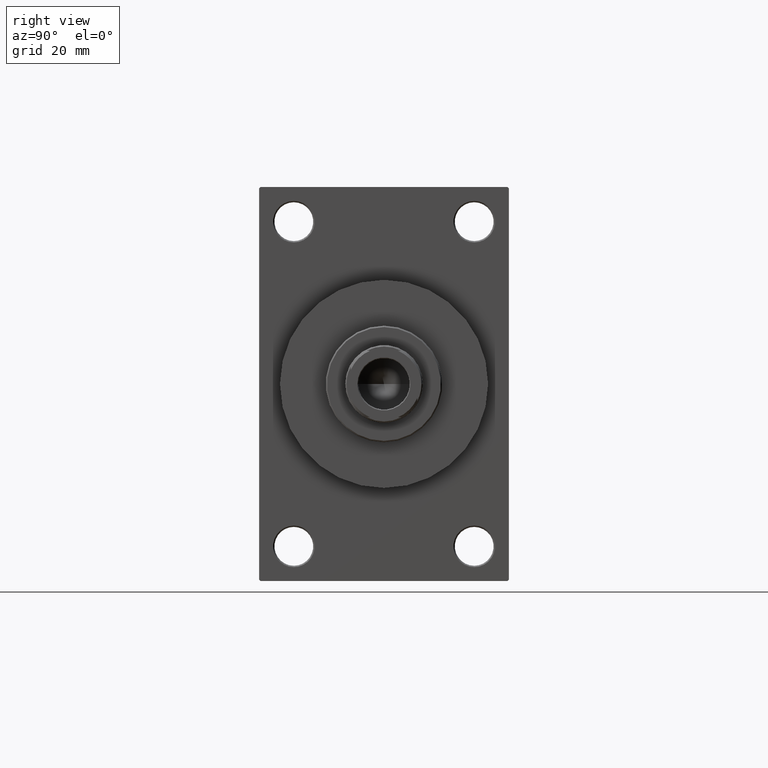
[diagram: clean part render]
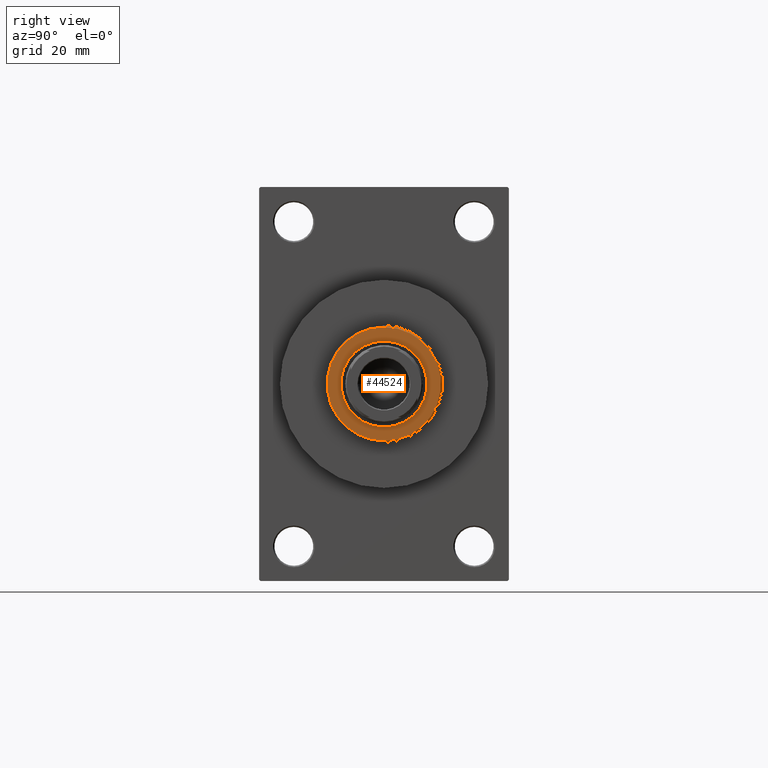
[diagram: same view with one face highlighted and labeled with its STEP entity id]
A machine part, right view. The second image highlights one B-rep face of the part: STEP entity #44524.
In plain terms, the highlighted planar face has unit normal (1, -0, -0).
Its self-contained STEP definition (entity closure, byte-faithful):
#729 = AXIS2_PLACEMENT_3D ( 'NONE', #10163, #38128, #30728 ) ;
#1175 = CARTESIAN_POINT ( 'NONE',  ( -20.50000000000001776, 0.000000000000000000, 54.26000000000000512 ) ) ;
#2089 = DIRECTION ( 'NONE',  ( 1.000000000000000000, 0.000000000000000000, 0.000000000000000000 ) ) ;
#2391 = CARTESIAN_POINT ( 'NONE',  ( 0.000000000000000000, 0.000000000000000000, 54.26000000000000512 ) ) ;
#4369 = EDGE_LOOP ( 'NONE', ( #37398, #10035 ) ) ;
#4603 = CARTESIAN_POINT ( 'NONE',  ( 0.000000000000000000, 0.000000000000000000, 54.26000000000000512 ) ) ;
#5970 = DIRECTION ( 'NONE',  ( 1.000000000000000000, 0.000000000000000000, -0.000000000000000000 ) ) ;
#6800 = AXIS2_PLACEMENT_3D ( 'NONE', #4603, #33931, #41116 ) ;
#6832 = CIRCLE ( 'NONE', #729, 20.50000000000001776 ) ;
#8743 = EDGE_LOOP ( 'NONE', ( #44638, #29516 ) ) ;
#10035 = ORIENTED_EDGE ( 'NONE', *, *, #13190, .F. ) ;
#10066 = AXIS2_PLACEMENT_3D ( 'NONE', #40790, #26234, #30266 ) ;
#10163 = CARTESIAN_POINT ( 'NONE',  ( 0.000000000000000000, 0.000000000000000000, 54.26000000000000512 ) ) ;
#11538 = CIRCLE ( 'NONE', #10066, 15.50000000000000000 ) ;
#12400 = CARTESIAN_POINT ( 'NONE',  ( 15.50000000000000000, 0.000000000000000000, 54.26000000000000512 ) ) ;
#13190 = EDGE_CURVE ( 'NONE', #42758, #35361, #23186, .T. ) ;
#15758 = VERTEX_POINT ( 'NONE', #41776 ) ;
#16242 = DIRECTION ( 'NONE',  ( 0.000000000000000000, 0.000000000000000000, 1.000000000000000000 ) ) ;
#16472 = FACE_OUTER_BOUND ( 'NONE', #8743, .T. ) ;
#19128 = AXIS2_PLACEMENT_3D ( 'NONE', #2391, #16242, #5970 ) ;
#20462 = DIRECTION ( 'NONE',  ( 0.000000000000000000, 0.000000000000000000, 1.000000000000000000 ) ) ;
#23186 = CIRCLE ( 'NONE', #36109, 15.50000000000000000 ) ;
#24537 = CARTESIAN_POINT ( 'NONE',  ( 0.000000000000000000, 0.000000000000000000, 54.26000000000000512 ) ) ;
#26234 = DIRECTION ( 'NONE',  ( 0.000000000000000000, 0.000000000000000000, 1.000000000000000000 ) ) ;
#28328 = EDGE_CURVE ( 'NONE', #15758, #40540, #38019, .T. ) ;
#29516 = ORIENTED_EDGE ( 'NONE', *, *, #28328, .T. ) ;
#29779 = EDGE_CURVE ( 'NONE', #40540, #15758, #6832, .T. ) ;
#30266 = DIRECTION ( 'NONE',  ( 1.000000000000000000, 0.000000000000000000, 0.000000000000000000 ) ) ;
#30728 = DIRECTION ( 'NONE',  ( 1.000000000000000000, 0.000000000000000000, 0.000000000000000000 ) ) ;
#32645 = CARTESIAN_POINT ( 'NONE',  ( -15.50000000000000000, 1.898202538678397557E-15, 54.26000000000000512 ) ) ;
#33931 = DIRECTION ( 'NONE',  ( 0.000000000000000000, 0.000000000000000000, 1.000000000000000000 ) ) ;
#34471 = EDGE_CURVE ( 'NONE', #35361, #42758, #11538, .T. ) ;
#34589 = PLANE ( 'NONE',  #19128 ) ;
#35361 = VERTEX_POINT ( 'NONE', #12400 ) ;
#36109 = AXIS2_PLACEMENT_3D ( 'NONE', #24537, #20462, #2089 ) ;
#37398 = ORIENTED_EDGE ( 'NONE', *, *, #34471, .F. ) ;
#38019 = CIRCLE ( 'NONE', #6800, 20.50000000000001776 ) ;
#38128 = DIRECTION ( 'NONE',  ( 0.000000000000000000, 0.000000000000000000, 1.000000000000000000 ) ) ;
#40540 = VERTEX_POINT ( 'NONE', #1175 ) ;
#40790 = CARTESIAN_POINT ( 'NONE',  ( 0.000000000000000000, 0.000000000000000000, 54.26000000000000512 ) ) ;
#41116 = DIRECTION ( 'NONE',  ( 1.000000000000000000, 0.000000000000000000, 0.000000000000000000 ) ) ;
#41545 = FACE_BOUND ( 'NONE', #4369, .T. ) ;
#41776 = CARTESIAN_POINT ( 'NONE',  ( 20.50000000000001776, 2.541142108230759057E-15, 54.26000000000000512 ) ) ;
#42758 = VERTEX_POINT ( 'NONE', #32645 ) ;
#44524 = ADVANCED_FACE ( 'NONE', ( #41545, #16472 ), #34589, .T. ) ;
#44638 = ORIENTED_EDGE ( 'NONE', *, *, #29779, .T. ) ;